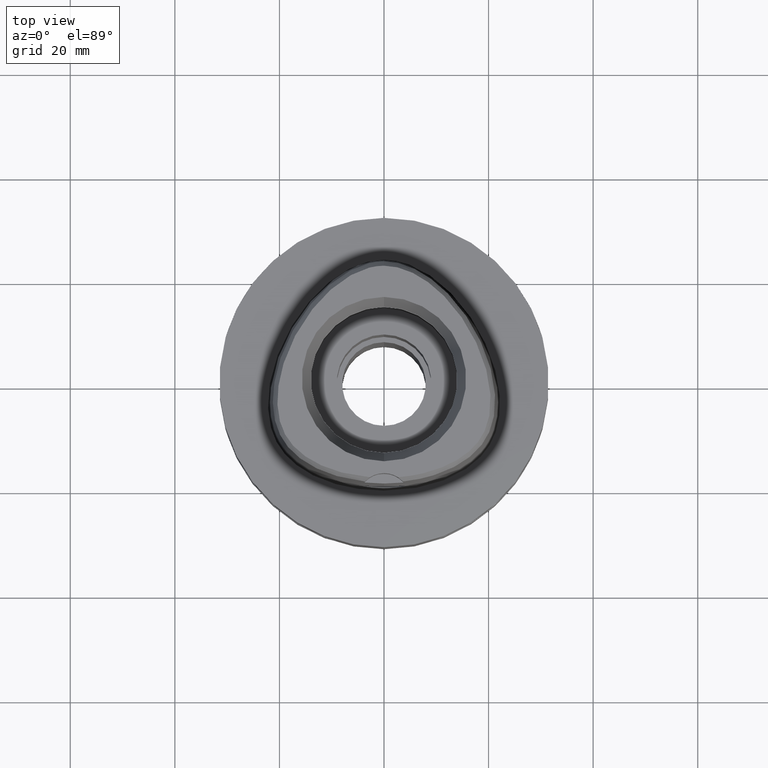
[diagram: clean part render]
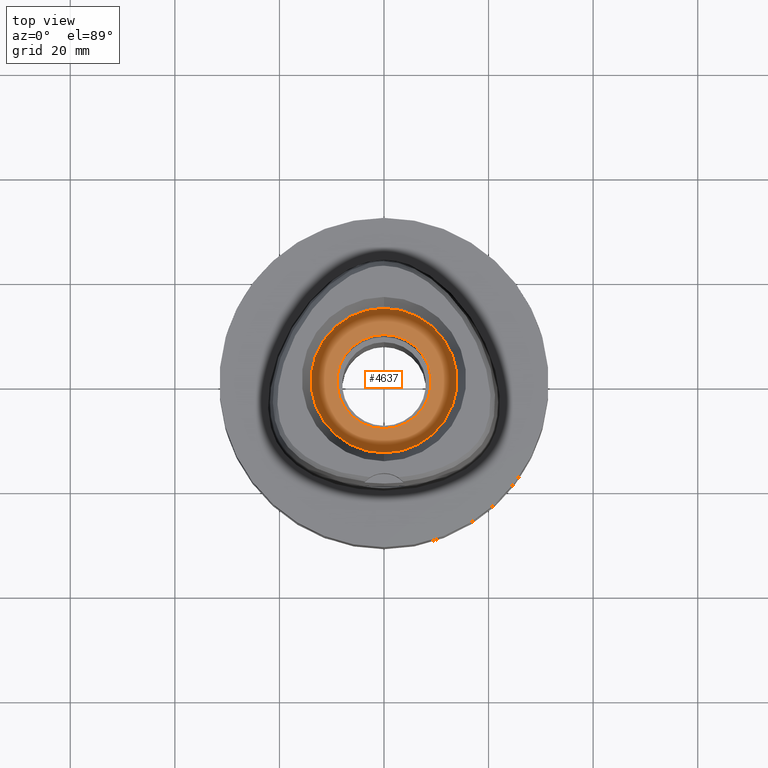
[diagram: same view with one face highlighted and labeled with its STEP entity id]
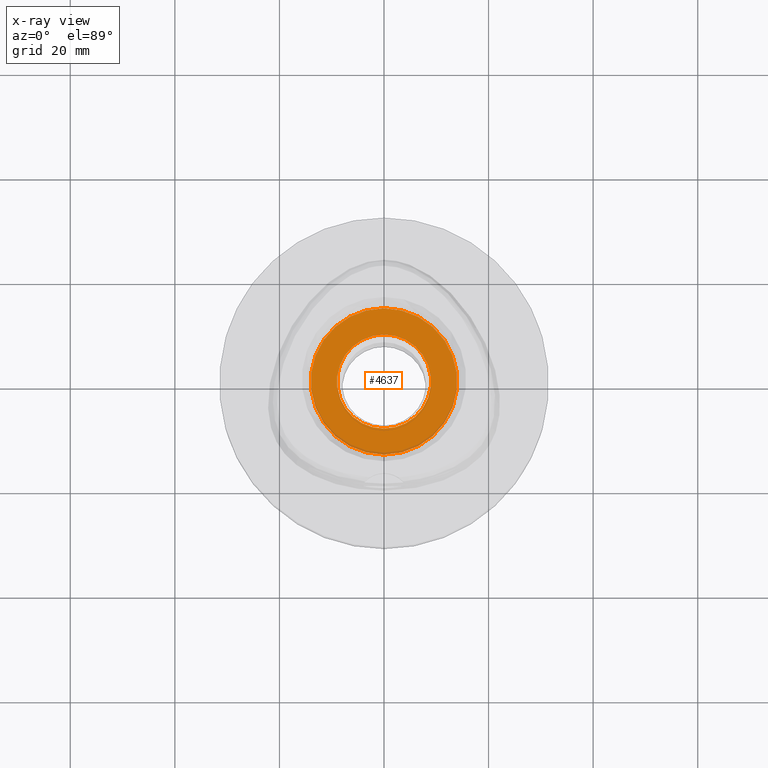
[diagram: x-ray of the same camera — body ghosted, the highlighted face saturated]
A machine part, top view. The second image highlights one B-rep face of the part: STEP entity #4637.
The next image is the same camera in x-ray: the body ghosted, the highlighted face saturated — about 3% of this face is hidden behind the body in this view.
In plain terms, the highlighted planar face has unit normal (0, 0, -1).
Its self-contained STEP definition (entity closure, byte-faithful):
#1699=CARTESIAN_POINT('',(0.E0,0.E0,1.1E1));
#1700=DIRECTION('',(0.E0,0.E0,-1.E0));
#1701=DIRECTION('',(0.E0,1.E0,0.E0));
#1702=AXIS2_PLACEMENT_3D('',#1699,#1700,#1701);
#1707=CARTESIAN_POINT('',(0.E0,0.E0,1.1E1));
#1708=DIRECTION('',(0.E0,0.E0,-1.E0));
#1709=DIRECTION('',(0.E0,-1.E0,0.E0));
#1710=AXIS2_PLACEMENT_3D('',#1707,#1708,#1709);
#1715=CARTESIAN_POINT('',(0.E0,0.E0,1.1E1));
#1716=DIRECTION('',(0.E0,0.E0,1.E0));
#1717=DIRECTION('',(0.E0,1.E0,0.E0));
#1718=AXIS2_PLACEMENT_3D('',#1715,#1716,#1717);
#1723=CARTESIAN_POINT('',(0.E0,0.E0,1.1E1));
#1724=DIRECTION('',(0.E0,0.E0,1.E0));
#1725=DIRECTION('',(0.E0,-1.E0,0.E0));
#1726=AXIS2_PLACEMENT_3D('',#1723,#1724,#1725);
#2988=CARTESIAN_POINT('',(0.E0,9.E0,1.1E1));
#2989=VERTEX_POINT('',#2988);
#2990=CARTESIAN_POINT('',(0.E0,-9.E0,1.1E1));
#2991=VERTEX_POINT('',#2990);
#2992=CARTESIAN_POINT('',(0.E0,1.4E1,1.1E1));
#2993=CARTESIAN_POINT('',(0.E0,-1.4E1,1.1E1));
#2994=VERTEX_POINT('',#2992);
#2995=VERTEX_POINT('',#2993);
#4622=CARTESIAN_POINT('',(0.E0,0.E0,1.1E1));
#4623=DIRECTION('',(0.E0,0.E0,-1.E0));
#4624=DIRECTION('',(0.E0,-1.E0,0.E0));
#4625=AXIS2_PLACEMENT_3D('',#4622,#4623,#4624);
#4626=PLANE('',#4625);
#4628=ORIENTED_EDGE('',*,*,#4627,.T.);
#4630=ORIENTED_EDGE('',*,*,#4629,.T.);
#4631=EDGE_LOOP('',(#4628,#4630));
#4632=FACE_OUTER_BOUND('',#4631,.F.);
#4633=ORIENTED_EDGE('',*,*,#4604,.T.);
#4634=ORIENTED_EDGE('',*,*,#4617,.T.);
#4635=EDGE_LOOP('',(#4633,#4634));
#4636=FACE_BOUND('',#4635,.F.);
#1703=CIRCLE('',#1702,1.4E1);
#1711=CIRCLE('',#1710,1.4E1);
#1719=CIRCLE('',#1718,9.E0);
#1727=CIRCLE('',#1726,9.E0);
#4604=EDGE_CURVE('',#2989,#2991,#1719,.T.);
#4617=EDGE_CURVE('',#2991,#2989,#1727,.T.);
#4627=EDGE_CURVE('',#2994,#2995,#1703,.T.);
#4629=EDGE_CURVE('',#2995,#2994,#1711,.T.);
#4637=ADVANCED_FACE('',(#4632,#4636),#4626,.F.);